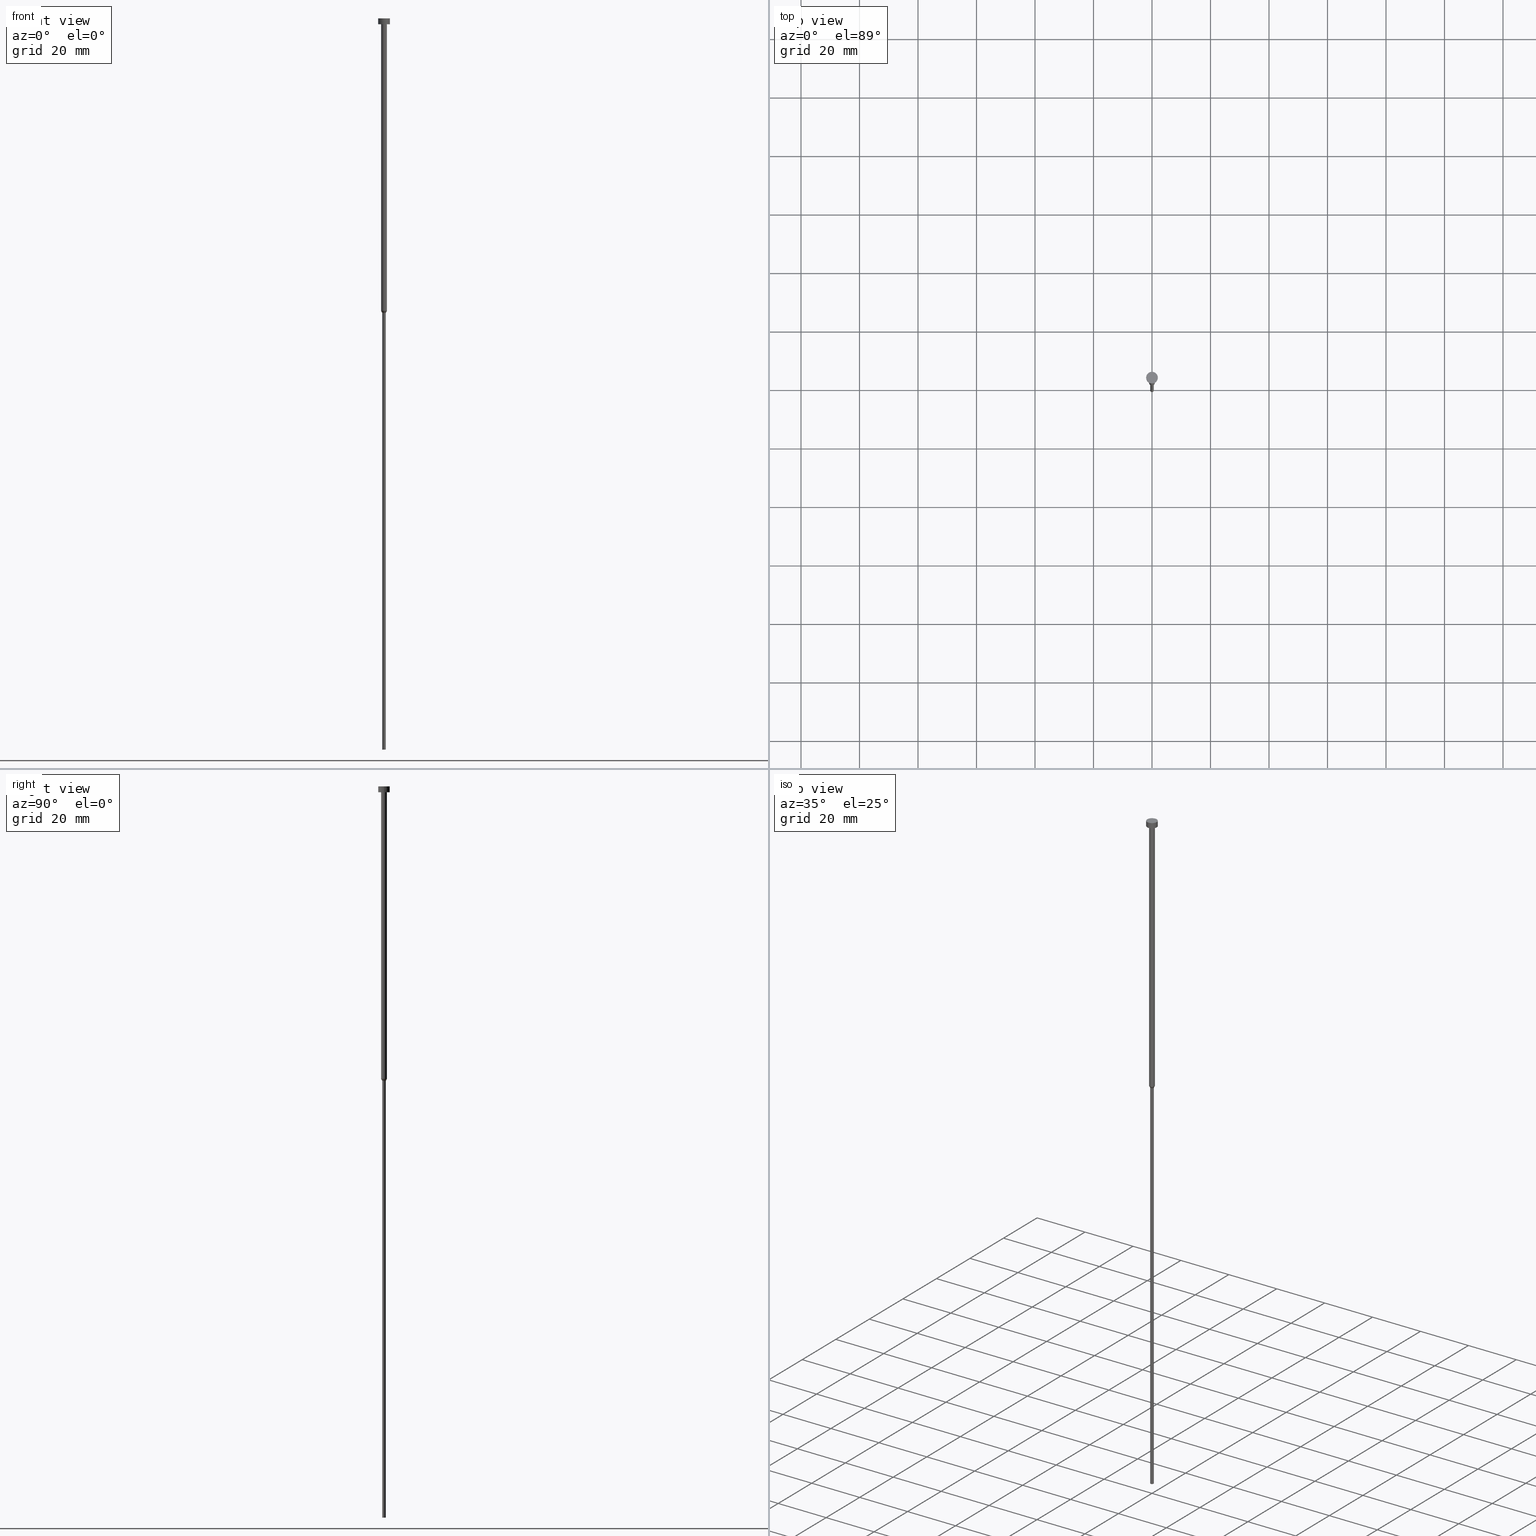
[diagram: canonical four-view strip — front | top / right | iso, engineering-drawing reading convention]
A machine part, canonical four-view strip (front | top / right | iso — engineering-drawing reading convention). The complete STEP part file that produces these views, byte-faithful:
ISO-10303-21;
HEADER;
FILE_DESCRIPTION (( 'STEP AP203' ),
    '1' );
FILE_NAME ('5bcb.STEP',
    '2023-02-13T10:57:53',
    ( '' ),
    ( '' ),
    'SwSTEP 2.0',
    'SolidWorks 2019',
    '' );
FILE_SCHEMA (( 'CONFIG_CONTROL_DESIGN' ));
ENDSEC;

DATA;
#1 = ORIENTED_EDGE ( 'NONE', *, *, #125, .T. ) ;
#2 = DIRECTION ( 'NONE',  ( 1.000000000000000000, 0.000000000000000000, 0.000000000000000000 ) ) ;
#3 = DIRECTION ( 'NONE',  ( -0.000000000000000000, -0.000000000000000000, 1.000000000000000000 ) ) ;
#4 = EDGE_CURVE ( 'NONE', #282, #67, #305, .T. ) ;
#5 = CIRCLE ( 'NONE', #288, 1.000000000000003553 ) ;
#6 = DIRECTION ( 'NONE',  ( 0.000000000000000000, -0.000000000000000000, 1.000000000000000000 ) ) ;
#7 = ORIENTED_EDGE ( 'NONE', *, *, #20, .F. ) ;
#8 = PRODUCT_RELATED_PRODUCT_CATEGORY ( 'detail', '', ( #51 ) ) ;
#9 = APPROVAL_STATUS ( 'not_yet_approved' ) ;
#10 = CARTESIAN_POINT ( 'NONE',  ( 0.000000000000000000, 0.000000000000000000, -100.0000000000000000 ) ) ;
#11 = VERTEX_POINT ( 'NONE', #24 ) ;
#12 = APPROVAL ( #15, 'NEUR�EN�' ) ;
#13 = VECTOR ( 'NONE', #341, 1000.000000000000114 ) ;
#14 = APPROVAL_PERSON_ORGANIZATION ( #77, #257, #261 ) ;
#15 = APPROVAL_STATUS ( 'not_yet_approved' ) ;
#16 = EDGE_LOOP ( 'NONE', ( #318, #108, #321, #209 ) ) ;
#17 = CARTESIAN_POINT ( 'NONE',  ( 0.000000000000000000, 0.000000000000000000, 0.000000000000000000 ) ) ;
#18 = EDGE_LOOP ( 'NONE', ( #245, #260 ) ) ;
#19 = DIRECTION ( 'NONE',  ( -0.000000000000000000, -0.000000000000000000, 1.000000000000000000 ) ) ;
#20 = EDGE_CURVE ( 'NONE', #278, #162, #116, .T. ) ;
#21 = ORIENTED_EDGE ( 'NONE', *, *, #4, .F. ) ;
#22 = VECTOR ( 'NONE', #195, 1000.000000000000000 ) ;
#23 = DIRECTION ( 'NONE',  ( 1.000000000000000000, 0.000000000000000000, 0.000000000000000000 ) ) ;
#24 = CARTESIAN_POINT ( 'NONE',  ( 1.000000000000003109, 0.000000000000000000, -100.0000000000000000 ) ) ;
#25 = CARTESIAN_POINT ( 'NONE',  ( 0.000000000000000000, 0.000000000000000000, -2.449293598294705921E-16 ) ) ;
#26 = FACE_OUTER_BOUND ( 'NONE', #97, .T. ) ;
#27 = EDGE_CURVE ( 'NONE', #235, #67, #304, .T. ) ;
#28 = CARTESIAN_POINT ( 'NONE',  ( 0.000000000000000000, 0.000000000000000000, 0.000000000000000000 ) ) ;
#29 = DIRECTION ( 'NONE',  ( 1.000000000000000000, 0.000000000000000000, 0.000000000000000000 ) ) ;
#30 = VECTOR ( 'NONE', #352, 1000.000000000000000 ) ;
#31 = CC_DESIGN_SECURITY_CLASSIFICATION ( #336, ( #178 ) ) ;
#32 = CARTESIAN_POINT ( 'NONE',  ( 0.5999999999999998668, 0.000000000000000000, -250.0000000000000000 ) ) ;
#33 = CARTESIAN_POINT ( 'NONE',  ( -0.5999999999999998668, 7.347880794884117764E-17, 0.000000000000000000 ) ) ;
#34 =( NAMED_UNIT ( * ) PLANE_ANGLE_UNIT ( ) SI_UNIT ( $, .RADIAN. ) );
#35 = ORIENTED_EDGE ( 'NONE', *, *, #27, .T. ) ;
#36 = AXIS2_PLACEMENT_3D ( 'NONE', #218, #326, #308 ) ;
#37 = ORIENTED_EDGE ( 'NONE', *, *, #103, .T. ) ;
#38 = EDGE_CURVE ( 'NONE', #67, #282, #331, .T. ) ;
#39 = DIRECTION ( 'NONE',  ( 1.000000000000000000, 0.000000000000000000, 0.000000000000000000 ) ) ;
#40 = CALENDAR_DATE ( 2023, 13, 2 ) ;
#41 = DIRECTION ( 'NONE',  ( -0.000000000000000000, -0.000000000000000000, 1.000000000000000000 ) ) ;
#42 = AXIS2_PLACEMENT_3D ( 'NONE', #158, #179, #348 ) ;
#43 = DIRECTION ( 'NONE',  ( -0.000000000000000000, -0.000000000000000000, 1.000000000000000000 ) ) ;
#44 = EDGE_LOOP ( 'NONE', ( #7, #191 ) ) ;
#45 = EDGE_CURVE ( 'NONE', #148, #282, #213, .T. ) ;
#46 = DIRECTION ( 'NONE',  ( -0.000000000000000000, -0.000000000000000000, 1.000000000000000000 ) ) ;
#47 = FACE_OUTER_BOUND ( 'NONE', #76, .T. ) ;
#48 = CLOSED_SHELL ( 'NONE', ( #198, #150, #82, #249, #64, #327, #289, #226, #80, #344, #154 ) ) ;
#49 = VERTEX_POINT ( 'NONE', #273 ) ;
#50 = CARTESIAN_POINT ( 'NONE',  ( 2.000000000000000000, 0.000000000000000000, -2.000000000000000444 ) ) ;
#51 = PRODUCT ( '5bcb', '5bcb', '', ( #175 ) ) ;
#52 = DIRECTION ( 'NONE',  ( -0.000000000000000000, -0.000000000000000000, 1.000000000000000000 ) ) ;
#53 = EDGE_LOOP ( 'NONE', ( #307, #91 ) ) ;
#54 = DESIGN_CONTEXT ( 'detailed design', #280, 'design' ) ;
#55 = CARTESIAN_POINT ( 'NONE',  ( 0.5999999999999998668, 0.000000000000000000, 0.000000000000000000 ) ) ;
#56 = AXIS2_PLACEMENT_3D ( 'NONE', #244, #111, #296 ) ;
#57 = CC_DESIGN_APPROVAL ( #12, ( #336 ) ) ;
#58 = DIRECTION ( 'NONE',  ( -0.000000000000000000, -0.000000000000000000, 1.000000000000000000 ) ) ;
#59 = ORIENTED_EDGE ( 'NONE', *, *, #71, .F. ) ;
#60 = CYLINDRICAL_SURFACE ( 'NONE', #145, 1.000000000000003331 ) ;
#61 = DIRECTION ( 'NONE',  ( -0.000000000000000000, -0.000000000000000000, 1.000000000000000000 ) ) ;
#62 = ORIENTED_EDGE ( 'NONE', *, *, #71, .T. ) ;
#63 = AXIS2_PLACEMENT_3D ( 'NONE', #164, #347, #210 ) ;
#64 = ADVANCED_FACE ( 'NONE', ( #26 ), #115, .T. ) ;
#65 = DATE_AND_TIME ( #309, #262 ) ;
#66 = ORIENTED_EDGE ( 'NONE', *, *, #45, .F. ) ;
#67 = VERTEX_POINT ( 'NONE', #176 ) ;
#68 = APPROVAL_ROLE ( '' ) ;
#69 = APPROVAL_PERSON_ORGANIZATION ( #227, #216, #68 ) ;
#70 = ORGANIZATION ( 'NEUR�EN�', 'NEUR�EN�', '' ) ;
#71 = EDGE_CURVE ( 'NONE', #282, #11, #338, .T. ) ;
#72 = PLANE ( 'NONE',  #343 ) ;
#73 = COORDINATED_UNIVERSAL_TIME_OFFSET ( 1, 0, .AHEAD. ) ;
#74 = LINE ( 'NONE', #122, #250 ) ;
#75 = PERSON_AND_ORGANIZATION ( #208, #70 ) ;
#76 = EDGE_LOOP ( 'NONE', ( #328, #126, #165, #332 ) ) ;
#77 = PERSON_AND_ORGANIZATION ( #208, #70 ) ;
#78 = FACE_OUTER_BOUND ( 'NONE', #44, .T. ) ;
#79 = COORDINATED_UNIVERSAL_TIME_OFFSET ( 1, 0, .AHEAD. ) ;
#80 = ADVANCED_FACE ( 'NONE', ( #251, #78 ), #72, .T. ) ;
#81 = PERSON_AND_ORGANIZATION ( #208, #70 ) ;
#82 = ADVANCED_FACE ( 'NONE', ( #314 ), #306, .T. ) ;
#83 = AXIS2_PLACEMENT_3D ( 'NONE', #194, #184, #214 ) ;
#84 = PERSON_AND_ORGANIZATION_ROLE ( 'creator' ) ;
#85 = DIRECTION ( 'NONE',  ( 1.000000000000000000, 0.000000000000000000, 0.000000000000000000 ) ) ;
#86 = ORIENTED_EDGE ( 'NONE', *, *, #98, .F. ) ;
#87 = DIRECTION ( 'NONE',  ( 1.000000000000000000, 0.000000000000000000, 0.000000000000000000 ) ) ;
#88 = FACE_OUTER_BOUND ( 'NONE', #93, .T. ) ;
#89 = CARTESIAN_POINT ( 'NONE',  ( 0.000000000000000000, 0.000000000000000000, -2.000000000000000444 ) ) ;
#90 = FACE_OUTER_BOUND ( 'NONE', #167, .T. ) ;
#91 = ORIENTED_EDGE ( 'NONE', *, *, #323, .T. ) ;
#92 = MANIFOLD_SOLID_BREP ( 'Rotovat1', #48 ) ;
#93 = EDGE_LOOP ( 'NONE', ( #157, #135, #290, #160 ) ) ;
#94 = EDGE_CURVE ( 'NONE', #293, #121, #74, .T. ) ;
#95 = VECTOR ( 'NONE', #271, 1000.000000000000000 ) ;
#96 = CARTESIAN_POINT ( 'NONE',  ( -1.000000000000003553, 1.224646799147357398E-16, -2.000000000000000444 ) ) ;
#97 = EDGE_LOOP ( 'NONE', ( #346, #281 ) ) ;
#98 = EDGE_CURVE ( 'NONE', #278, #185, #173, .T. ) ;
#99 = ORIENTED_EDGE ( 'NONE', *, *, #103, .F. ) ;
#100 = AXIS2_PLACEMENT_3D ( 'NONE', #25, #272, #324 ) ;
#101 = DIRECTION ( 'NONE',  ( 0.4999999999999981681, 0.000000000000000000, 0.8660254037844395958 ) ) ;
#102 = CARTESIAN_POINT ( 'NONE',  ( 1.000000000000003109, 0.000000000000000000, -100.0000000000000000 ) ) ;
#103 = EDGE_CURVE ( 'NONE', #67, #293, #202, .T. ) ;
#104 = CALENDAR_DATE ( 2023, 13, 2 ) ;
#105 = CONICAL_SURFACE ( 'NONE', #151, 1.000000000000003109, 0.5235987755982968173 ) ;
#106 = CALENDAR_DATE ( 2023, 13, 2 ) ;
#107 = SHAPE_DEFINITION_REPRESENTATION ( #247, #320 ) ;
#108 = ORIENTED_EDGE ( 'NONE', *, *, #94, .T. ) ;
#109 = VECTOR ( 'NONE', #19, 1000.000000000000000 ) ;
#110 = PERSON_AND_ORGANIZATION ( #208, #70 ) ;
#111 = DIRECTION ( 'NONE',  ( -0.000000000000000000, -0.000000000000000000, 1.000000000000000000 ) ) ;
#112 = CYLINDRICAL_SURFACE ( 'NONE', #253, 2.000000000000000000 ) ;
#113 = ORIENTED_EDGE ( 'NONE', *, *, #182, .F. ) ;
#114 = CC_DESIGN_PERSON_AND_ORGANIZATION_ASSIGNMENT ( #75, #286, ( #51 ) ) ;
#115 = PLANE ( 'NONE',  #36 ) ;
#116 = CIRCLE ( 'NONE', #83, 2.000000000000000000 ) ;
#117 = ORIENTED_EDGE ( 'NONE', *, *, #38, .T. ) ;
#118 = CARTESIAN_POINT ( 'NONE',  ( 1.000000000000003331, 0.000000000000000000, 0.000000000000000000 ) ) ;
#119 = CIRCLE ( 'NONE', #174, 2.000000000000000000 ) ;
#120 = EDGE_CURVE ( 'NONE', #293, #11, #147, .T. ) ;
#121 = VERTEX_POINT ( 'NONE', #96 ) ;
#122 = CARTESIAN_POINT ( 'NONE',  ( -1.000000000000003331, 1.224646799147357151E-16, 0.000000000000000000 ) ) ;
#123 = PERSON_AND_ORGANIZATION ( #208, #70 ) ;
#124 = AXIS2_PLACEMENT_3D ( 'NONE', #220, #268, #236 ) ;
#125 = EDGE_CURVE ( 'NONE', #235, #148, #276, .T. ) ;
#126 = ORIENTED_EDGE ( 'NONE', *, *, #144, .T. ) ;
#127 = COORDINATED_UNIVERSAL_TIME_OFFSET ( 1, 0, .AHEAD. ) ;
#128 = AXIS2_PLACEMENT_3D ( 'NONE', #89, #58, #23 ) ;
#129 = CC_DESIGN_APPROVAL ( #257, ( #178 ) ) ;
#130 = CARTESIAN_POINT ( 'NONE',  ( 1.000000000000003553, 0.000000000000000000, -2.000000000000000444 ) ) ;
#131 = ORIENTED_EDGE ( 'NONE', *, *, #27, .F. ) ;
#132 = PERSON_AND_ORGANIZATION_ROLE ( 'design_supplier' ) ;
#133 = CARTESIAN_POINT ( 'NONE',  ( 0.5999999999999998668, 0.000000000000000000, -100.6928203230275614 ) ) ;
#134 = AXIS2_PLACEMENT_3D ( 'NONE', #313, #43, #29 ) ;
#135 = ORIENTED_EDGE ( 'NONE', *, *, #120, .T. ) ;
#136 = CARTESIAN_POINT ( 'NONE',  ( 2.000000000000000000, 0.000000000000000000, -2.449293598294705921E-16 ) ) ;
#137 = ORIENTED_EDGE ( 'NONE', *, *, #264, .T. ) ;
#138 = CC_DESIGN_DATE_AND_TIME_ASSIGNMENT ( #312, #291, ( #336 ) ) ;
#139 = DIRECTION ( 'NONE',  ( 1.000000000000000000, 0.000000000000000000, 0.000000000000000000 ) ) ;
#140 = COORDINATED_UNIVERSAL_TIME_OFFSET ( 1, 0, .AHEAD. ) ;
#141 = LINE ( 'NONE', #118, #22 ) ;
#142 = CARTESIAN_POINT ( 'NONE',  ( 0.000000000000000000, 0.000000000000000000, -100.0000000000000000 ) ) ;
#143 = CIRCLE ( 'NONE', #63, 0.5999999999999998668 ) ;
#144 = EDGE_CURVE ( 'NONE', #162, #278, #119, .T. ) ;
#145 = AXIS2_PLACEMENT_3D ( 'NONE', #28, #188, #153 ) ;
#146 =( NAMED_UNIT ( * ) SI_UNIT ( $, .STERADIAN. ) SOLID_ANGLE_UNIT ( ) );
#147 = CIRCLE ( 'NONE', #134, 1.000000000000003109 ) ;
#148 = VERTEX_POINT ( 'NONE', #32 ) ;
#149 = DATE_TIME_ROLE ( 'creation_date' ) ;
#150 = ADVANCED_FACE ( 'NONE', ( #299 ), #301, .T. ) ;
#151 = AXIS2_PLACEMENT_3D ( 'NONE', #190, #156, #139 ) ;
#152 = CYLINDRICAL_SURFACE ( 'NONE', #224, 2.000000000000000000 ) ;
#153 = DIRECTION ( 'NONE',  ( 1.000000000000000000, 0.000000000000000000, 0.000000000000000000 ) ) ;
#154 = ADVANCED_FACE ( 'NONE', ( #155 ), #239, .T. ) ;
#155 = FACE_OUTER_BOUND ( 'NONE', #53, .T. ) ;
#156 = DIRECTION ( 'NONE',  ( -0.000000000000000000, -0.000000000000000000, 1.000000000000000000 ) ) ;
#157 = ORIENTED_EDGE ( 'NONE', *, *, #94, .F. ) ;
#158 = CARTESIAN_POINT ( 'NONE',  ( 0.000000000000000000, 0.000000000000000000, -2.449293598294705921E-16 ) ) ;
#159 = VECTOR ( 'NONE', #254, 1000.000000000000000 ) ;
#160 = ORIENTED_EDGE ( 'NONE', *, *, #339, .F. ) ;
#161 = DIRECTION ( 'NONE',  ( 1.000000000000000000, 0.000000000000000000, 0.000000000000000000 ) ) ;
#162 = VERTEX_POINT ( 'NONE', #266 ) ;
#163 = PRODUCT_DEFINITION ( 'NEZN�M�', '', #178, #54 ) ;
#164 = CARTESIAN_POINT ( 'NONE',  ( 0.000000000000000000, 0.000000000000000000, -250.0000000000000000 ) ) ;
#165 = ORIENTED_EDGE ( 'NONE', *, *, #98, .T. ) ;
#166 = CIRCLE ( 'NONE', #100, 2.000000000000000000 ) ;
#167 = EDGE_LOOP ( 'NONE', ( #137, #35, #21, #66 ) ) ;
#168 = EDGE_LOOP ( 'NONE', ( #99, #117, #62, #267 ) ) ;
#169 =( GEOMETRIC_REPRESENTATION_CONTEXT ( 3 ) GLOBAL_UNCERTAINTY_ASSIGNED_CONTEXT ( ( #274 ) ) GLOBAL_UNIT_ASSIGNED_CONTEXT ( ( #242, #34, #146 ) ) REPRESENTATION_CONTEXT ( 'NONE', 'WORKASPACE' ) );
#170 = EDGE_LOOP ( 'NONE', ( #342, #37, #197, #59 ) ) ;
#171 = ORIENTED_EDGE ( 'NONE', *, *, #38, .F. ) ;
#172 = EDGE_CURVE ( 'NONE', #340, #121, #246, .T. ) ;
#173 = LINE ( 'NONE', #225, #159 ) ;
#174 = AXIS2_PLACEMENT_3D ( 'NONE', #298, #295, #85 ) ;
#175 = MECHANICAL_CONTEXT ( 'NONE', #256, 'mechanical' ) ;
#176 = CARTESIAN_POINT ( 'NONE',  ( -0.5999999999999998668, 7.347880794884117764E-17, -100.6928203230275614 ) ) ;
#177 = APPROVAL_DATE_TIME ( #204, #12 ) ;
#178 = PRODUCT_DEFINITION_FORMATION_WITH_SPECIFIED_SOURCE ( 'LIBOVOLN�', '', #51, .NOT_KNOWN. ) ;
#179 = DIRECTION ( 'NONE',  ( -0.000000000000000000, -0.000000000000000000, 1.000000000000000000 ) ) ;
#180 = LINE ( 'NONE', #294, #109 ) ;
#181 = CARTESIAN_POINT ( 'NONE',  ( 0.000000000000000000, 0.000000000000000000, 0.000000000000000000 ) ) ;
#182 = EDGE_CURVE ( 'NONE', #185, #49, #166, .T. ) ;
#183 = CARTESIAN_POINT ( 'NONE',  ( 0.000000000000000000, 0.000000000000000000, 0.000000000000000000 ) ) ;
#184 = DIRECTION ( 'NONE',  ( -0.000000000000000000, -0.000000000000000000, 1.000000000000000000 ) ) ;
#185 = VERTEX_POINT ( 'NONE', #136 ) ;
#186 = CIRCLE ( 'NONE', #42, 2.000000000000000000 ) ;
#187 = APPROVAL_PERSON_ORGANIZATION ( #81, #12, #201 ) ;
#188 = DIRECTION ( 'NONE',  ( -0.000000000000000000, -0.000000000000000000, 1.000000000000000000 ) ) ;
#189 = CARTESIAN_POINT ( 'NONE',  ( 0.000000000000000000, 0.000000000000000000, 0.000000000000000000 ) ) ;
#190 = CARTESIAN_POINT ( 'NONE',  ( 0.000000000000000000, 0.000000000000000000, -100.0000000000000000 ) ) ;
#191 = ORIENTED_EDGE ( 'NONE', *, *, #144, .F. ) ;
#192 = CYLINDRICAL_SURFACE ( 'NONE', #211, 0.5999999999999998668 ) ;
#193 = DIRECTION ( 'NONE',  ( -0.000000000000000000, -0.000000000000000000, 1.000000000000000000 ) ) ;
#194 = CARTESIAN_POINT ( 'NONE',  ( 0.000000000000000000, 0.000000000000000000, -2.000000000000000444 ) ) ;
#195 = DIRECTION ( 'NONE',  ( -0.000000000000000000, -0.000000000000000000, 1.000000000000000000 ) ) ;
#196 = CC_DESIGN_PERSON_AND_ORGANIZATION_ASSIGNMENT ( #310, #132, ( #178 ) ) ;
#197 = ORIENTED_EDGE ( 'NONE', *, *, #292, .F. ) ;
#198 = ADVANCED_FACE ( 'NONE', ( #243 ), #112, .T. ) ;
#199 = PERSON_AND_ORGANIZATION_ROLE ( 'classification_officer' ) ;
#200 = DIRECTION ( 'NONE',  ( 0.000000000000000000, 0.000000000000000000, -1.000000000000000000 ) ) ;
#201 = APPROVAL_ROLE ( '' ) ;
#202 = LINE ( 'NONE', #232, #13 ) ;
#203 = APPLICATION_PROTOCOL_DEFINITION ( 'international standard', 'config_control_design', 1994, #256 ) ;
#204 = DATE_AND_TIME ( #104, #270 ) ;
#205 = LOCAL_TIME ( 11, 57, 53.00000000000000000, #127 ) ;
#206 = DIRECTION ( 'NONE',  ( 1.000000000000000000, 0.000000000000000000, 0.000000000000000000 ) ) ;
#207 = PERSON_AND_ORGANIZATION ( #208, #70 ) ;
#208 = PERSON ( 'NEUR�EN�', 'NEUR�EN�', 'NEUR�EN�', ('NEUR�EN�'), ('NEUR�EN�'), ('NEUR�EN�') ) ;
#209 = ORIENTED_EDGE ( 'NONE', *, *, #353, .F. ) ;
#210 = DIRECTION ( 'NONE',  ( 1.000000000000000000, 0.000000000000000000, 0.000000000000000000 ) ) ;
#211 = AXIS2_PLACEMENT_3D ( 'NONE', #300, #303, #237 ) ;
#212 = CC_DESIGN_APPROVAL ( #216, ( #163 ) ) ;
#213 = LINE ( 'NONE', #55, #95 ) ;
#214 = DIRECTION ( 'NONE',  ( 1.000000000000000000, 0.000000000000000000, 0.000000000000000000 ) ) ;
#215 = DIRECTION ( 'NONE',  ( 1.000000000000000000, 0.000000000000000000, 0.000000000000000000 ) ) ;
#216 = APPROVAL ( #9, 'NEUR�EN�' ) ;
#217 = FACE_OUTER_BOUND ( 'NONE', #168, .T. ) ;
#218 = CARTESIAN_POINT ( 'NONE',  ( 0.000000000000000000, 0.000000000000000000, -250.0000000000000000 ) ) ;
#219 = AXIS2_PLACEMENT_3D ( 'NONE', #279, #241, #265 ) ;
#220 = CARTESIAN_POINT ( 'NONE',  ( 0.000000000000000000, 0.000000000000000000, -250.0000000000000000 ) ) ;
#221 = DIRECTION ( 'NONE',  ( 1.000000000000000000, 0.000000000000000000, 0.000000000000000000 ) ) ;
#222 = DIRECTION ( 'NONE',  ( 1.000000000000000000, 0.000000000000000000, 0.000000000000000000 ) ) ;
#223 = CC_DESIGN_PERSON_AND_ORGANIZATION_ASSIGNMENT ( #110, #84, ( #163 ) ) ;
#224 = AXIS2_PLACEMENT_3D ( 'NONE', #17, #3, #215 ) ;
#225 = CARTESIAN_POINT ( 'NONE',  ( 2.000000000000000000, 0.000000000000000000, 0.000000000000000000 ) ) ;
#226 = ADVANCED_FACE ( 'NONE', ( #88 ), #60, .T. ) ;
#227 = PERSON_AND_ORGANIZATION ( #208, #70 ) ;
#228 = CALENDAR_DATE ( 2023, 13, 2 ) ;
#229 = AXIS2_PLACEMENT_3D ( 'NONE', #240, #193, #2 ) ;
#230 = APPROVAL_DATE_TIME ( #65, #216 ) ;
#231 = SECURITY_CLASSIFICATION_LEVEL ( 'unclassified' ) ;
#232 = CARTESIAN_POINT ( 'NONE',  ( -1.000000000000003109, 1.224646799147356905E-16, -100.0000000000000000 ) ) ;
#233 = CYLINDRICAL_SURFACE ( 'NONE', #325, 0.5999999999999998668 ) ;
#234 = AXIS2_PLACEMENT_3D ( 'NONE', #183, #351, #87 ) ;
#235 = VERTEX_POINT ( 'NONE', #355 ) ;
#236 = DIRECTION ( 'NONE',  ( 1.000000000000000000, 0.000000000000000000, 0.000000000000000000 ) ) ;
#237 = DIRECTION ( 'NONE',  ( 1.000000000000000000, 0.000000000000000000, 0.000000000000000000 ) ) ;
#238 = ORIENTED_EDGE ( 'NONE', *, *, #277, .T. ) ;
#239 = PLANE ( 'NONE',  #319 ) ;
#240 = CARTESIAN_POINT ( 'NONE',  ( 0.000000000000000000, 0.000000000000000000, -100.6928203230275614 ) ) ;
#241 = DIRECTION ( 'NONE',  ( 0.000000000000000000, 0.000000000000000000, 1.000000000000000000 ) ) ;
#242 =( LENGTH_UNIT ( ) NAMED_UNIT ( * ) SI_UNIT ( .MILLI., .METRE. ) );
#243 = FACE_OUTER_BOUND ( 'NONE', #329, .T. ) ;
#244 = CARTESIAN_POINT ( 'NONE',  ( 0.000000000000000000, 0.000000000000000000, -100.6928203230275614 ) ) ;
#245 = ORIENTED_EDGE ( 'NONE', *, *, #172, .T. ) ;
#246 = CIRCLE ( 'NONE', #128, 1.000000000000003553 ) ;
#247 = PRODUCT_DEFINITION_SHAPE ( 'NONE', 'NONE',  #163 ) ;
#248 = CARTESIAN_POINT ( 'NONE',  ( 0.000000000000000000, 0.000000000000000000, -1.224646799147352961E-16 ) ) ;
#249 = ADVANCED_FACE ( 'NONE', ( #90 ), #192, .T. ) ;
#250 = VECTOR ( 'NONE', #41, 1000.000000000000000 ) ;
#251 = FACE_BOUND ( 'NONE', #18, .T. ) ;
#252 = DIRECTION ( 'NONE',  ( -0.000000000000000000, -0.000000000000000000, 1.000000000000000000 ) ) ;
#253 = AXIS2_PLACEMENT_3D ( 'NONE', #189, #61, #161 ) ;
#254 = DIRECTION ( 'NONE',  ( -0.000000000000000000, -0.000000000000000000, 1.000000000000000000 ) ) ;
#255 = DIRECTION ( 'NONE',  ( -1.000000000000000000, 0.000000000000000000, -0.000000000000000000 ) ) ;
#256 = APPLICATION_CONTEXT ( 'configuration controlled 3d designs of mechanical parts and assemblies' ) ;
#257 = APPROVAL ( #316, 'NEUR�EN�' ) ;
#258 = DATE_AND_TIME ( #40, #263 ) ;
#259 = DIRECTION ( 'NONE',  ( 1.000000000000000000, 0.000000000000000000, 0.000000000000000000 ) ) ;
#260 = ORIENTED_EDGE ( 'NONE', *, *, #339, .T. ) ;
#261 = APPROVAL_ROLE ( '' ) ;
#262 = LOCAL_TIME ( 11, 57, 53.00000000000000000, #140 ) ;
#263 = LOCAL_TIME ( 11, 57, 53.00000000000000000, #79 ) ;
#264 = EDGE_CURVE ( 'NONE', #148, #235, #143, .T. ) ;
#265 = DIRECTION ( 'NONE',  ( 1.000000000000000000, 0.000000000000000000, 0.000000000000000000 ) ) ;
#266 = CARTESIAN_POINT ( 'NONE',  ( -2.000000000000000000, 2.449293598294706414E-16, -2.000000000000000444 ) ) ;
#267 = ORIENTED_EDGE ( 'NONE', *, *, #120, .F. ) ;
#268 = DIRECTION ( 'NONE',  ( -0.000000000000000000, -0.000000000000000000, 1.000000000000000000 ) ) ;
#269 = CIRCLE ( 'NONE', #349, 1.000000000000003109 ) ;
#270 = LOCAL_TIME ( 11, 57, 53.00000000000000000, #285 ) ;
#271 = DIRECTION ( 'NONE',  ( -0.000000000000000000, -0.000000000000000000, 1.000000000000000000 ) ) ;
#272 = DIRECTION ( 'NONE',  ( -0.000000000000000000, -0.000000000000000000, 1.000000000000000000 ) ) ;
#273 = CARTESIAN_POINT ( 'NONE',  ( -2.000000000000000000, 2.449293598294706414E-16, -2.449293598294705921E-16 ) ) ;
#274 = UNCERTAINTY_MEASURE_WITH_UNIT (LENGTH_MEASURE( 1.000000000000000082E-05 ), #242, 'distance_accuracy_value', 'NONE');
#275 = EDGE_LOOP ( 'NONE', ( #131, #1, #354, #171 ) ) ;
#276 = CIRCLE ( 'NONE', #124, 0.5999999999999998668 ) ;
#277 = EDGE_CURVE ( 'NONE', #162, #49, #180, .T. ) ;
#278 = VERTEX_POINT ( 'NONE', #50 ) ;
#279 = CARTESIAN_POINT ( 'NONE',  ( 0.000000000000000000, 0.000000000000000000, 0.000000000000000000 ) ) ;
#280 = APPLICATION_CONTEXT ( 'configuration controlled 3d designs of mechanical parts and assemblies' ) ;
#281 = ORIENTED_EDGE ( 'NONE', *, *, #125, .F. ) ;
#282 = VERTEX_POINT ( 'NONE', #133 ) ;
#283 = AXIS2_PLACEMENT_3D ( 'NONE', #10, #252, #39 ) ;
#284 = CARTESIAN_POINT ( 'NONE',  ( 0.000000000000000000, -2.000000000000000000, -2.000000000000000444 ) ) ;
#285 = COORDINATED_UNIVERSAL_TIME_OFFSET ( 1, 0, .AHEAD. ) ;
#286 = PERSON_AND_ORGANIZATION_ROLE ( 'design_owner' ) ;
#287 = ORIENTED_EDGE ( 'NONE', *, *, #20, .T. ) ;
#288 = AXIS2_PLACEMENT_3D ( 'NONE', #315, #46, #259 ) ;
#289 = ADVANCED_FACE ( 'NONE', ( #217 ), #105, .T. ) ;
#290 = ORIENTED_EDGE ( 'NONE', *, *, #353, .T. ) ;
#291 = DATE_TIME_ROLE ( 'classification_date' ) ;
#292 = EDGE_CURVE ( 'NONE', #11, #293, #269, .T. ) ;
#293 = VERTEX_POINT ( 'NONE', #330 ) ;
#294 = CARTESIAN_POINT ( 'NONE',  ( -2.000000000000000000, 2.449293598294706414E-16, 0.000000000000000000 ) ) ;
#295 = DIRECTION ( 'NONE',  ( -0.000000000000000000, -0.000000000000000000, 1.000000000000000000 ) ) ;
#296 = DIRECTION ( 'NONE',  ( 1.000000000000000000, 0.000000000000000000, 0.000000000000000000 ) ) ;
#297 = CC_DESIGN_PERSON_AND_ORGANIZATION_ASSIGNMENT ( #123, #345, ( #178 ) ) ;
#298 = CARTESIAN_POINT ( 'NONE',  ( 0.000000000000000000, 0.000000000000000000, -2.000000000000000444 ) ) ;
#299 = FACE_OUTER_BOUND ( 'NONE', #16, .T. ) ;
#300 = CARTESIAN_POINT ( 'NONE',  ( 0.000000000000000000, 0.000000000000000000, 0.000000000000000000 ) ) ;
#301 = CYLINDRICAL_SURFACE ( 'NONE', #234, 1.000000000000003331 ) ;
#302 = DIRECTION ( 'NONE',  ( -0.000000000000000000, -0.000000000000000000, 1.000000000000000000 ) ) ;
#303 = DIRECTION ( 'NONE',  ( -0.000000000000000000, -0.000000000000000000, 1.000000000000000000 ) ) ;
#304 = LINE ( 'NONE', #33, #30 ) ;
#305 = CIRCLE ( 'NONE', #229, 0.5999999999999998668 ) ;
#306 = CONICAL_SURFACE ( 'NONE', #283, 1.000000000000003109, 0.5235987755982968173 ) ;
#307 = ORIENTED_EDGE ( 'NONE', *, *, #182, .T. ) ;
#308 = DIRECTION ( 'NONE',  ( -1.000000000000000000, 0.000000000000000000, -0.000000000000000000 ) ) ;
#309 = CALENDAR_DATE ( 2023, 13, 2 ) ;
#310 = PERSON_AND_ORGANIZATION ( #208, #70 ) ;
#311 = CC_DESIGN_PERSON_AND_ORGANIZATION_ASSIGNMENT ( #207, #199, ( #336 ) ) ;
#312 = DATE_AND_TIME ( #228, #350 ) ;
#313 = CARTESIAN_POINT ( 'NONE',  ( 0.000000000000000000, 0.000000000000000000, -100.0000000000000000 ) ) ;
#314 = FACE_OUTER_BOUND ( 'NONE', #170, .T. ) ;
#315 = CARTESIAN_POINT ( 'NONE',  ( 0.000000000000000000, 0.000000000000000000, -2.000000000000000444 ) ) ;
#316 = APPROVAL_STATUS ( 'not_yet_approved' ) ;
#317 = APPROVAL_DATE_TIME ( #337, #257 ) ;
#318 = ORIENTED_EDGE ( 'NONE', *, *, #292, .T. ) ;
#319 = AXIS2_PLACEMENT_3D ( 'NONE', #248, #6, #221 ) ;
#320 = ADVANCED_BREP_SHAPE_REPRESENTATION ( '5bcb', ( #92, #219 ), #169 ) ;
#321 = ORIENTED_EDGE ( 'NONE', *, *, #172, .F. ) ;
#322 = FACE_OUTER_BOUND ( 'NONE', #275, .T. ) ;
#323 = EDGE_CURVE ( 'NONE', #49, #185, #186, .T. ) ;
#324 = DIRECTION ( 'NONE',  ( 1.000000000000000000, 0.000000000000000000, 0.000000000000000000 ) ) ;
#325 = AXIS2_PLACEMENT_3D ( 'NONE', #181, #52, #206 ) ;
#326 = DIRECTION ( 'NONE',  ( 0.000000000000000000, 0.000000000000000000, -1.000000000000000000 ) ) ;
#327 = ADVANCED_FACE ( 'NONE', ( #322 ), #233, .T. ) ;
#328 = ORIENTED_EDGE ( 'NONE', *, *, #277, .F. ) ;
#329 = EDGE_LOOP ( 'NONE', ( #287, #238, #113, #86 ) ) ;
#330 = CARTESIAN_POINT ( 'NONE',  ( -1.000000000000003109, 1.224646799147356905E-16, -100.0000000000000000 ) ) ;
#331 = CIRCLE ( 'NONE', #56, 0.5999999999999998668 ) ;
#332 = ORIENTED_EDGE ( 'NONE', *, *, #323, .F. ) ;
#333 = CC_DESIGN_DATE_AND_TIME_ASSIGNMENT ( #258, #149, ( #163 ) ) ;
#334 = APPLICATION_PROTOCOL_DEFINITION ( 'international standard', 'config_control_design', 1994, #280 ) ;
#335 = VECTOR ( 'NONE', #101, 1000.000000000000114 ) ;
#336 = SECURITY_CLASSIFICATION ( '', '', #231 ) ;
#337 = DATE_AND_TIME ( #106, #205 ) ;
#338 = LINE ( 'NONE', #102, #335 ) ;
#339 = EDGE_CURVE ( 'NONE', #121, #340, #5, .T. ) ;
#340 = VERTEX_POINT ( 'NONE', #130 ) ;
#341 = DIRECTION ( 'NONE',  ( -0.4999999999999981681, 6.123233995736742617E-17, 0.8660254037844395958 ) ) ;
#342 = ORIENTED_EDGE ( 'NONE', *, *, #4, .T. ) ;
#343 = AXIS2_PLACEMENT_3D ( 'NONE', #284, #200, #255 ) ;
#344 = ADVANCED_FACE ( 'NONE', ( #47 ), #152, .T. ) ;
#345 = PERSON_AND_ORGANIZATION_ROLE ( 'creator' ) ;
#346 = ORIENTED_EDGE ( 'NONE', *, *, #264, .F. ) ;
#347 = DIRECTION ( 'NONE',  ( -0.000000000000000000, -0.000000000000000000, 1.000000000000000000 ) ) ;
#348 = DIRECTION ( 'NONE',  ( 1.000000000000000000, 0.000000000000000000, 0.000000000000000000 ) ) ;
#349 = AXIS2_PLACEMENT_3D ( 'NONE', #142, #302, #222 ) ;
#350 = LOCAL_TIME ( 11, 57, 53.00000000000000000, #73 ) ;
#351 = DIRECTION ( 'NONE',  ( -0.000000000000000000, -0.000000000000000000, 1.000000000000000000 ) ) ;
#352 = DIRECTION ( 'NONE',  ( -0.000000000000000000, -0.000000000000000000, 1.000000000000000000 ) ) ;
#353 = EDGE_CURVE ( 'NONE', #11, #340, #141, .T. ) ;
#354 = ORIENTED_EDGE ( 'NONE', *, *, #45, .T. ) ;
#355 = CARTESIAN_POINT ( 'NONE',  ( -0.5999999999999998668, 7.347880794884117764E-17, -250.0000000000000000 ) ) ;
ENDSEC;
END-ISO-10303-21;
